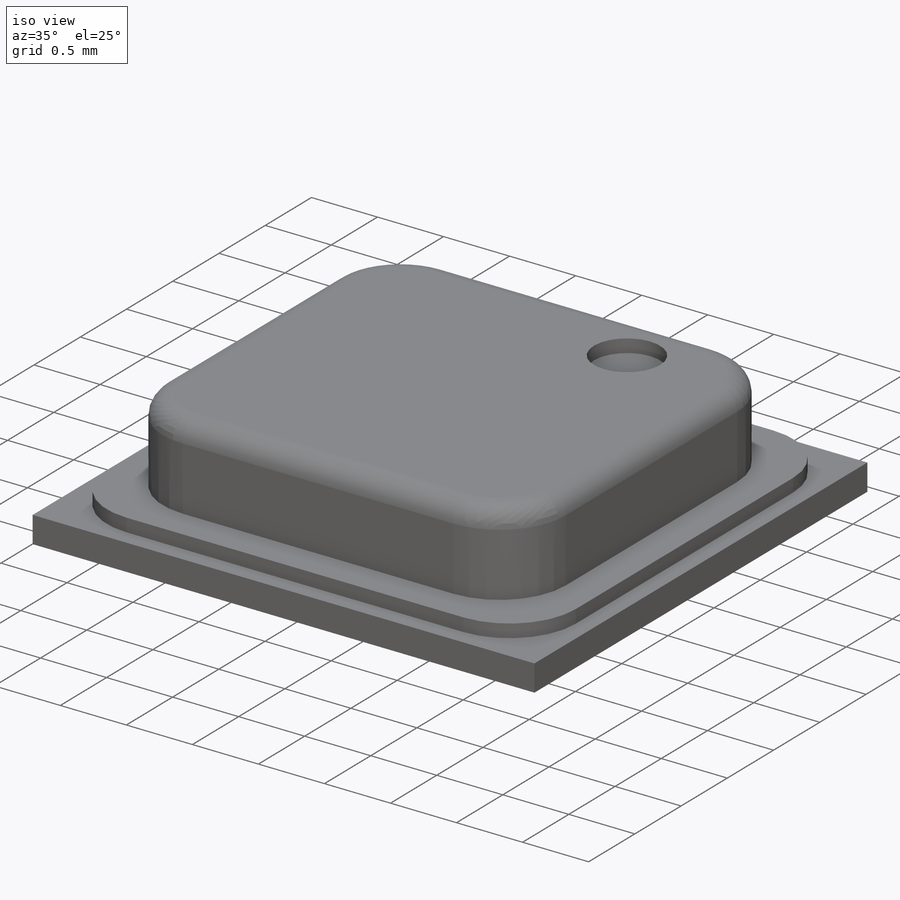
[diagram: iso view]
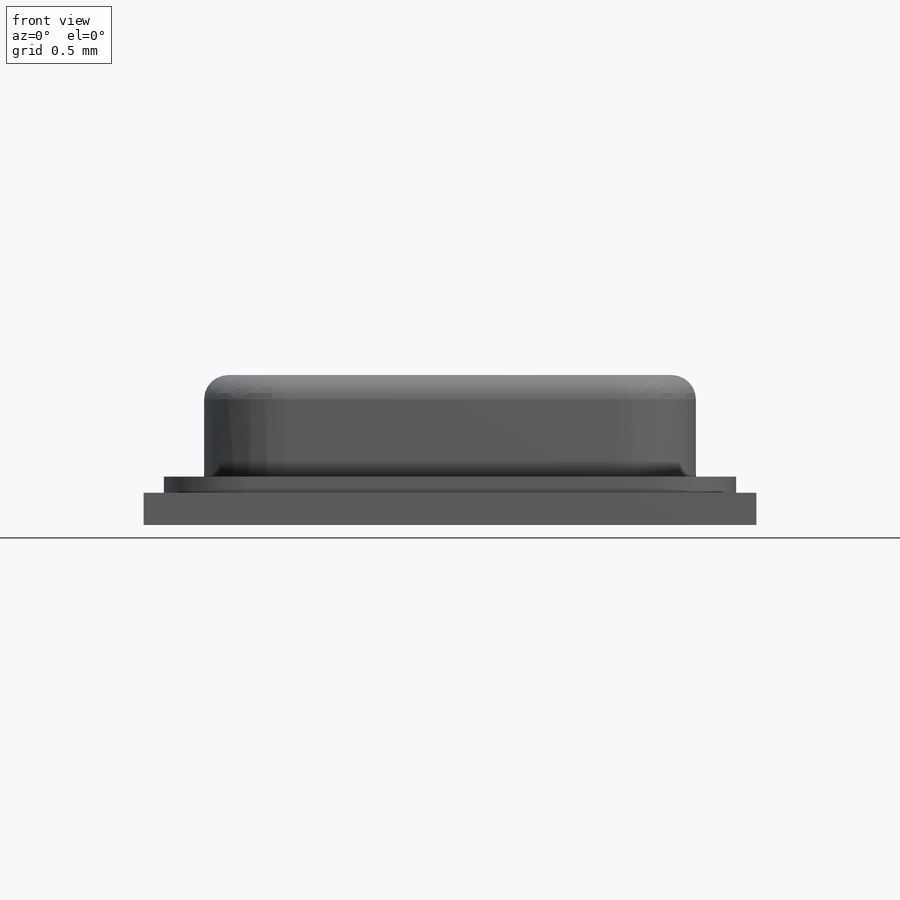
[diagram: front view]
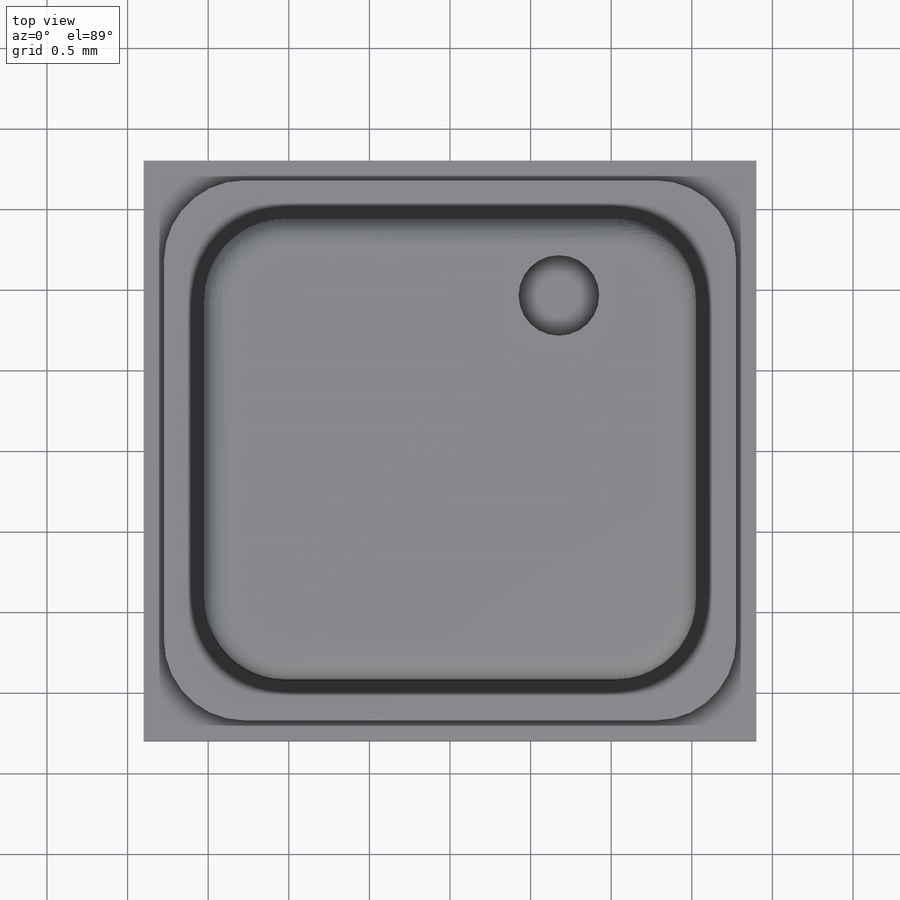
[diagram: top view]
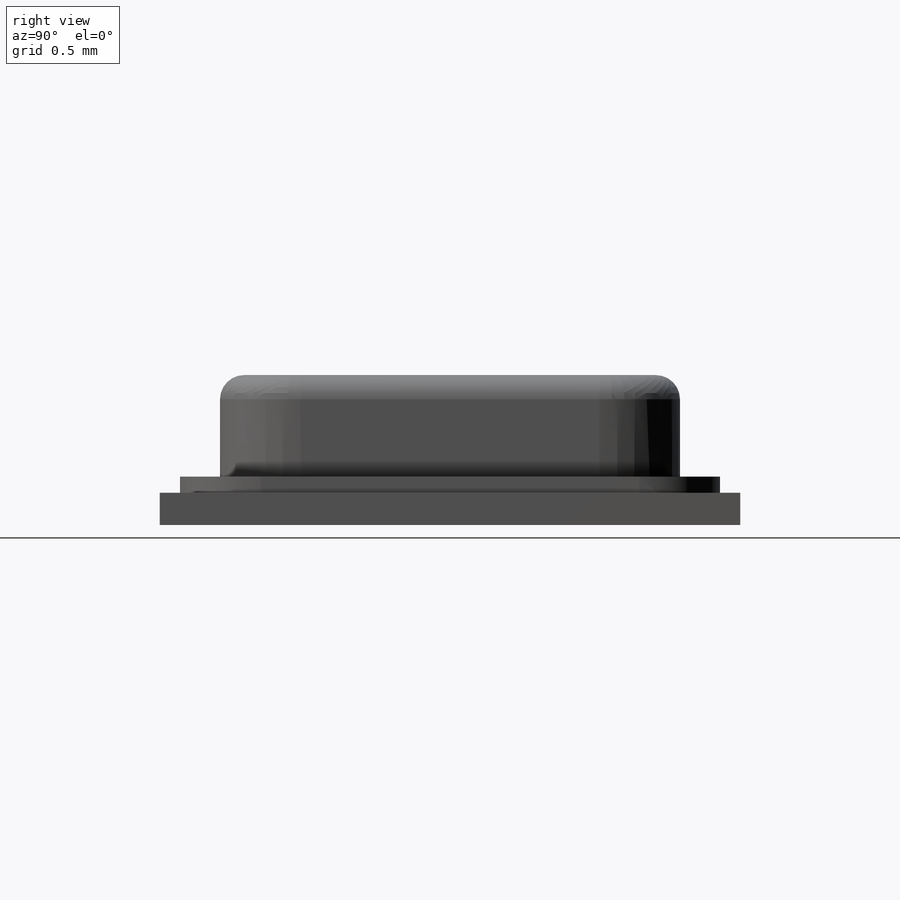
[diagram: right view]
SOLIDWORKS PART (.sldprt)
format: sldprt  version: not decoded by parser v0  size: 276,480 bytes
history: native  units: mm
features: sketch x5, extrude x3, fillet x3, material x1, cut_extrude x1 (+13 scaffold rows collapsed)
feature tree (26):
  scaffold x13  (default folders/planes/origin — collapsed)
  material  "Material <not specified>"
  sketch  "Sketch1"  dims[D1=3.8mm D2=3.6mm]
  extrude  "Boss-Extrude1"  Depth=0.2mm
  sketch  "Sketch2"
  sketch  "Sketch3"  dims[D1=3.55mm D2=3.35mm]
  extrude  "Boss-Extrude2"  Depth=0.1mm
  fillet  "Fillet1"  Radius=0.5mm
  sketch  "Sketch4"  dims[D1=3.05mm D2=2.853mm]
  extrude  "Boss-Extrude3"  Depth=0.63mm
  fillet  "Fillet2"  Radius=0.5mm
  fillet  "Fillet5"  Radius=0.15mm
  sketch  "Sketch5"  dims[c1.D1=0.5mm c1.D2=0.85mm c1.D3=1.225mm c2.D2=0.85mm c2.D3=1.225mm]
  cut_extrude  "Cut-Extrude1"  Depth=0.1mm
decode coverage: 11 of 12 modeling features carry decoded parameters
note: suppression state not decoded; provenance and decode notes live in map.json
